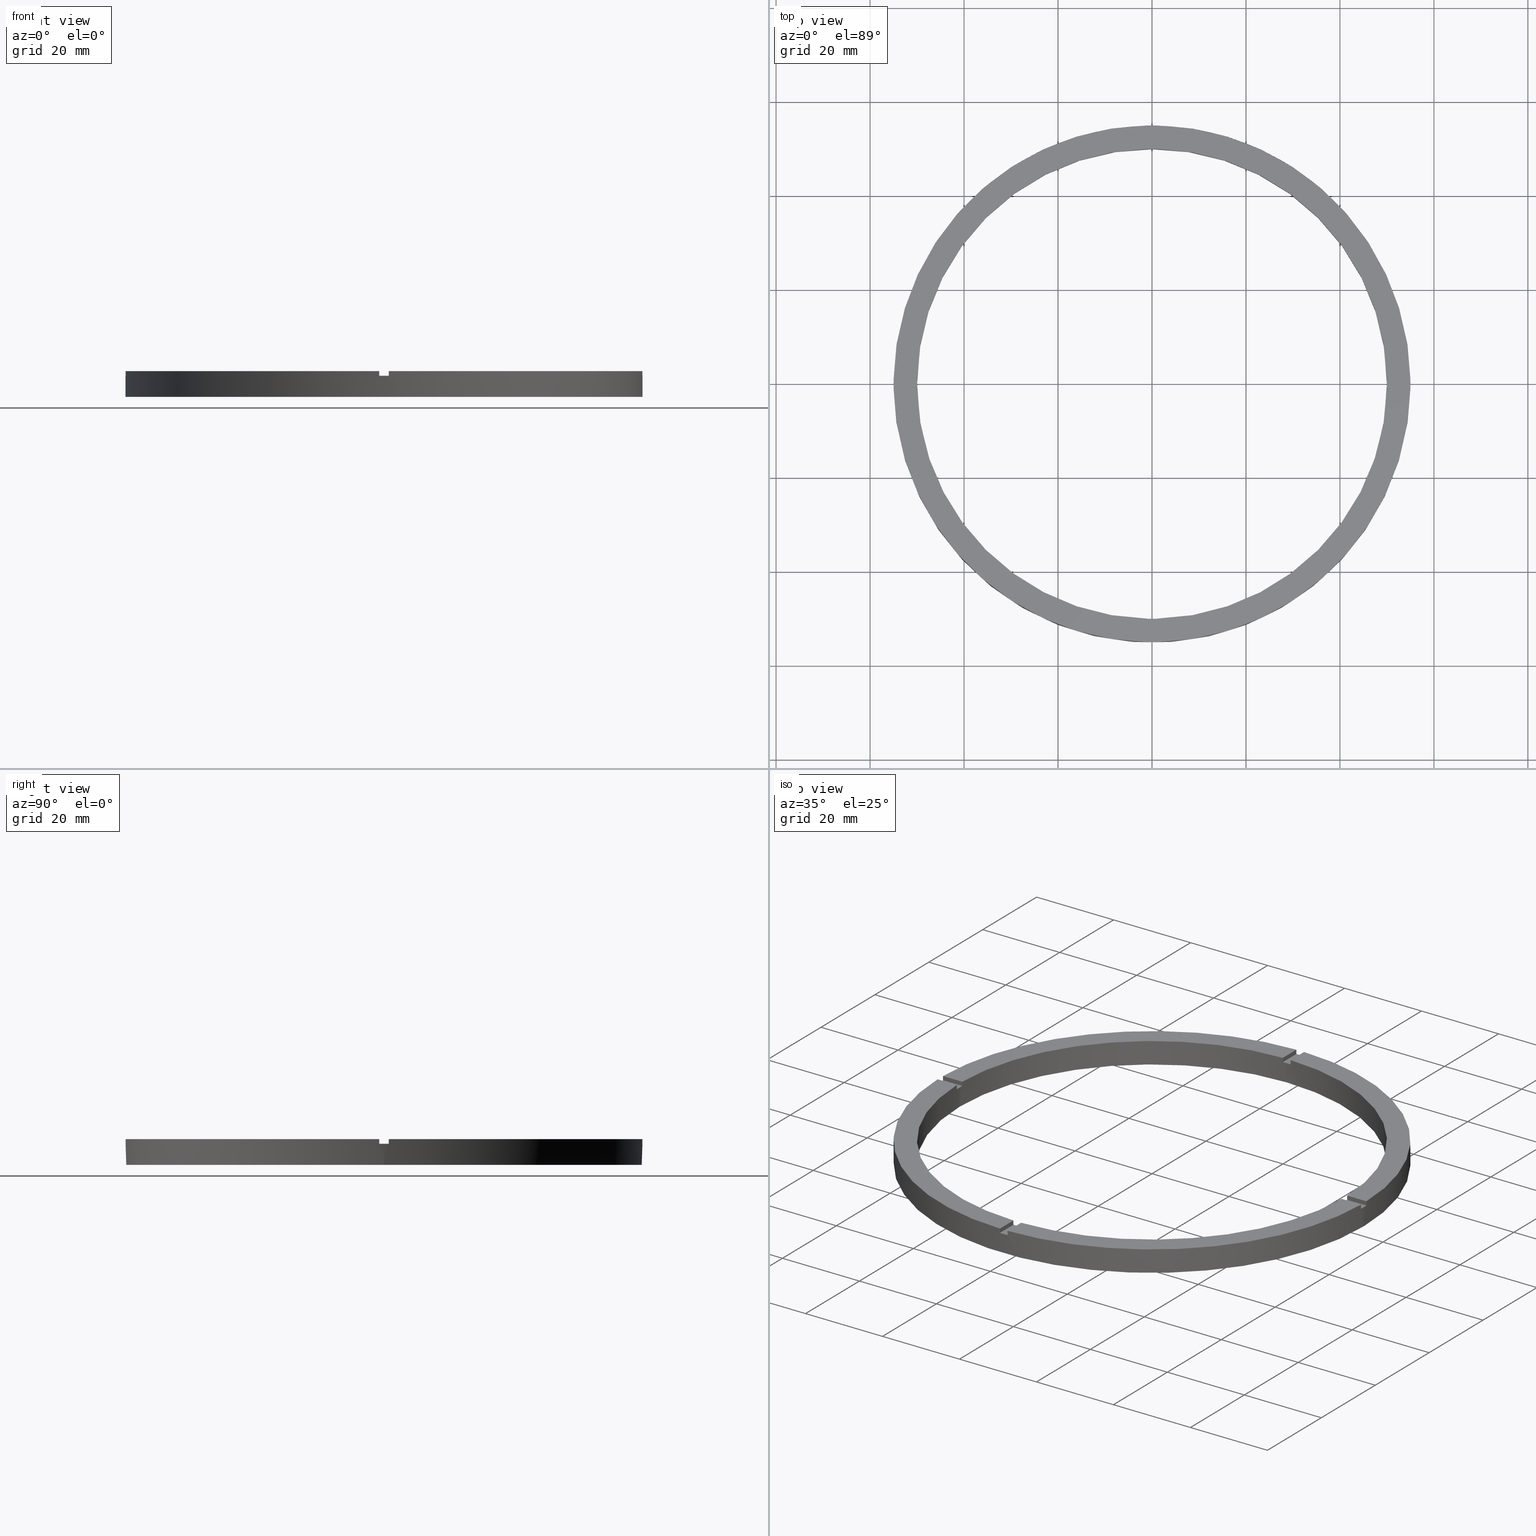
[diagram: canonical four-view strip — front | top / right | iso, engineering-drawing reading convention]
A machine part, canonical four-view strip (front | top / right | iso — engineering-drawing reading convention). The complete STEP part file that produces these views, byte-faithful:
ISO-10303-21;
HEADER;
FILE_DESCRIPTION (( 'STEP AP203' ),
    '1' );
FILE_NAME ('514224.step',
    '2024-12-26T02:49:48',
    ( 'MSI' ),
    ( '' ),
    'SwSTEP 2.0',
    'SolidWorks 2020',
    '' );
FILE_SCHEMA (( 'CONFIG_CONTROL_DESIGN' ));
ENDSEC;

DATA;
#1 = CARTESIAN_POINT ( 'NONE',  ( 0.9999999999999726885, 54.99090833947007440, 5.500000000000000000 ) ) ;
#2 = CC_DESIGN_PERSON_AND_ORGANIZATION_ASSIGNMENT ( #62, #739, ( #609 ) ) ;
#3 = VECTOR ( 'NONE', #651, 1000.000000000000000 ) ;
#4 = DIRECTION ( 'NONE',  ( 1.000000000000000000, 0.000000000000000000, 0.000000000000000000 ) ) ;
#5 = EDGE_CURVE ( 'NONE', #661, #153, #187, .T. ) ;
#6 = AXIS2_PLACEMENT_3D ( 'NONE', #12, #782, #416 ) ;
#7 = LINE ( 'NONE', #39, #521 ) ;
#8 = LINE ( 'NONE', #555, #3 ) ;
#9 = VECTOR ( 'NONE', #530, 1000.000000000000000 ) ;
#10 = DIRECTION ( 'NONE',  ( 1.000000000000000000, 0.000000000000000000, 0.000000000000000000 ) ) ;
#11 = LINE ( 'NONE', #549, #9 ) ;
#12 = CARTESIAN_POINT ( 'NONE',  ( 0.000000000000000000, 0.000000000000000000, 0.000000000000000000 ) ) ;
#13 = ADVANCED_FACE ( 'NONE', ( #699 ), #701, .F. ) ;
#14 = AXIS2_PLACEMENT_3D ( 'NONE', #533, #101, #403 ) ;
#15 = EDGE_CURVE ( 'NONE', #195, #423, #719, .T. ) ;
#16 = AXIS2_PLACEMENT_3D ( 'NONE', #142, #290, #580 ) ;
#17 = DIRECTION ( 'NONE',  ( 0.000000000000000000, 0.000000000000000000, 1.000000000000000000 ) ) ;
#18 = CARTESIAN_POINT ( 'NONE',  ( 55.00000000000000000, 6.735557395310442615E-15, 5.500000000000000000 ) ) ;
#19 = CARTESIAN_POINT ( 'NONE',  ( -1.000000000000156097, -49.98999899979995121, 5.500000000000000000 ) ) ;
#20 = CARTESIAN_POINT ( 'NONE',  ( -50.00000000000000000, 0.000000000000000000, 4.500000000000000000 ) ) ;
#21 = PLANE ( 'NONE',  #125 ) ;
#22 = EDGE_CURVE ( 'NONE', #711, #626, #473, .T. ) ;
#23 = SECURITY_CLASSIFICATION_LEVEL ( 'unclassified' ) ;
#24 = DIRECTION ( 'NONE',  ( 1.000000000000000000, 0.000000000000000000, 0.000000000000000000 ) ) ;
#25 = EDGE_CURVE ( 'NONE', #180, #45, #461, .T. ) ;
#26 = DIRECTION ( 'NONE',  ( 1.000000000000000000, 8.673617379884034239E-17, 0.000000000000000000 ) ) ;
#27 = DIRECTION ( 'NONE',  ( 0.000000000000000000, 0.000000000000000000, 1.000000000000000000 ) ) ;
#28 = ADVANCED_FACE ( 'NONE', ( #192 ), #729, .F. ) ;
#29 = CARTESIAN_POINT ( 'NONE',  ( 0.000000000000000000, 0.000000000000000000, 0.000000000000000000 ) ) ;
#30 = CARTESIAN_POINT ( 'NONE',  ( 0.000000000000000000, 0.000000000000000000, 0.000000000000000000 ) ) ;
#31 = MECHANICAL_CONTEXT ( 'NONE', #653, 'mechanical' ) ;
#32 = EDGE_CURVE ( 'NONE', #173, #150, #730, .T. ) ;
#33 = AXIS2_PLACEMENT_3D ( 'NONE', #30, #138, #425 ) ;
#34 = DIRECTION ( 'NONE',  ( 1.000000000000000000, 0.000000000000000000, 0.000000000000000000 ) ) ;
#35 = CARTESIAN_POINT ( 'NONE',  ( 54.99090833947007440, -1.000000000000154099, 5.500000000000000000 ) ) ;
#36 = DIRECTION ( 'NONE',  ( 0.000000000000000000, 0.000000000000000000, 1.000000000000000000 ) ) ;
#37 = CARTESIAN_POINT ( 'NONE',  ( 0.9999999999999726885, 45.00000000000000000, 5.500000000000000000 ) ) ;
#38 = LOCAL_TIME ( 10, 49, 48.00000000000000000, #561 ) ;
#39 = CARTESIAN_POINT ( 'NONE',  ( -1.000000000000027311, 45.00000000000000000, 4.500000000000000000 ) ) ;
#40 = ORIENTED_EDGE ( 'NONE', *, *, #389, .T. ) ;
#41 = PLANE ( 'NONE',  #615 ) ;
#42 = AXIS2_PLACEMENT_3D ( 'NONE', #396, #293, #4 ) ;
#43 = CARTESIAN_POINT ( 'NONE',  ( -49.98999899979995121, -1.000000000000031974, 5.500000000000000000 ) ) ;
#44 = CALENDAR_DATE ( 2024, 26, 12 ) ;
#45 = VERTEX_POINT ( 'NONE', #406 ) ;
#46 = DIRECTION ( 'NONE',  ( 1.000000000000000000, 0.000000000000000000, 0.000000000000000000 ) ) ;
#47 = ADVANCED_FACE ( 'NONE', ( #455 ), #172, .F. ) ;
#48 = EDGE_CURVE ( 'NONE', #632, #404, #199, .T. ) ;
#49 = AXIS2_PLACEMENT_3D ( 'NONE', #751, #115, #520 ) ;
#50 = ORGANIZATION ( 'δָ��', 'δָ��', '' ) ;
#51 = VERTEX_POINT ( 'NONE', #1 ) ;
#52 = DIRECTION ( 'NONE',  ( 0.000000000000000000, 0.000000000000000000, 1.000000000000000000 ) ) ;
#53 = AXIS2_PLACEMENT_3D ( 'NONE', #130, #543, #266 ) ;
#54 = APPROVAL_PERSON_ORGANIZATION ( #551, #635, #262 ) ;
#55 = DATE_AND_TIME ( #556, #323 ) ;
#56 = PLANE ( 'NONE',  #16 ) ;
#57 = ORIENTED_EDGE ( 'NONE', *, *, #177, .F. ) ;
#58 = CARTESIAN_POINT ( 'NONE',  ( -1.000000000000155431, -54.99090833947007440, 5.500000000000000000 ) ) ;
#59 = CARTESIAN_POINT ( 'NONE',  ( -1.000000000000155431, -54.99090833947007440, 5.500000000000000000 ) ) ;
#60 = CALENDAR_DATE ( 2024, 26, 12 ) ;
#61 = ORIENTED_EDGE ( 'NONE', *, *, #600, .T. ) ;
#62 = PERSON_AND_ORGANIZATION ( #686, #50 ) ;
#63 = DATE_AND_TIME ( #309, #320 ) ;
#64 = CC_DESIGN_DATE_AND_TIME_ASSIGNMENT ( #308, #82, ( #683 ) ) ;
#65 = DIRECTION ( 'NONE',  ( 0.000000000000000000, 0.000000000000000000, 1.000000000000000000 ) ) ;
#66 = PERSON_AND_ORGANIZATION ( #686, #50 ) ;
#67 = ORIENTED_EDGE ( 'NONE', *, *, #443, .T. ) ;
#68 = EDGE_CURVE ( 'NONE', #213, #51, #706, .T. ) ;
#69 = VERTEX_POINT ( 'NONE', #373 ) ;
#70 = DATE_AND_TIME ( #60, #572 ) ;
#71 = DIRECTION ( 'NONE',  ( -0.000000000000000000, -0.000000000000000000, -1.000000000000000000 ) ) ;
#72 = EDGE_CURVE ( 'NONE', #409, #51, #204, .T. ) ;
#73 = DIRECTION ( 'NONE',  ( -0.000000000000000000, -0.000000000000000000, -1.000000000000000000 ) ) ;
#74 = DIRECTION ( 'NONE',  ( 0.000000000000000000, 0.000000000000000000, 1.000000000000000000 ) ) ;
#75 = DIRECTION ( 'NONE',  ( -0.000000000000000000, -0.000000000000000000, -1.000000000000000000 ) ) ;
#76 = ADVANCED_FACE ( 'NONE', ( #194 ), #56, .T. ) ;
#77 = DIRECTION ( 'NONE',  ( 0.000000000000000000, 0.000000000000000000, -1.000000000000000000 ) ) ;
#78 = DIRECTION ( 'NONE',  ( 0.000000000000000000, 0.000000000000000000, 1.000000000000000000 ) ) ;
#79 = DATE_TIME_ROLE ( 'classification_date' ) ;
#80 = CARTESIAN_POINT ( 'NONE',  ( 49.98999899979995831, 0.9999999999998454570, 5.500000000000000000 ) ) ;
#81 = ADVANCED_FACE ( 'NONE', ( #708 ), #151, .T. ) ;
#82 = DATE_TIME_ROLE ( 'creation_date' ) ;
#83 = AXIS2_PLACEMENT_3D ( 'NONE', #143, #228, #529 ) ;
#84 = CC_DESIGN_APPROVAL ( #591, ( #283 ) ) ;
#85 = DIRECTION ( 'NONE',  ( -1.000000000000000000, 0.000000000000000000, 0.000000000000000000 ) ) ;
#86 = DIRECTION ( 'NONE',  ( 1.000000000000000000, 0.000000000000000000, -0.000000000000000000 ) ) ;
#87 = EDGE_CURVE ( 'NONE', #451, #562, #460, .T. ) ;
#88 = CARTESIAN_POINT ( 'NONE',  ( -54.99090833947007440, 0.9999999999999672484, 5.500000000000000000 ) ) ;
#89 = AXIS2_PLACEMENT_3D ( 'NONE', #620, #691, #570 ) ;
#90 = EDGE_LOOP ( 'NONE', ( #380, #645, #454, #149 ) ) ;
#91 = PRODUCT_RELATED_PRODUCT_CATEGORY ( 'detail', '', ( #609 ) ) ;
#92 = EDGE_CURVE ( 'NONE', #173, #735, #712, .T. ) ;
#93 = DIRECTION ( 'NONE',  ( -0.000000000000000000, -0.000000000000000000, -1.000000000000000000 ) ) ;
#94 = CARTESIAN_POINT ( 'NONE',  ( -49.98999899979995121, 0.9999999999999681366, 5.500000000000000000 ) ) ;
#95 = CARTESIAN_POINT ( 'NONE',  ( 0.9999999999998432365, -45.00000000000017764, 5.500000000000000000 ) ) ;
#96 = EDGE_LOOP ( 'NONE', ( #222, #438, #742, #137 ) ) ;
#97 = DIRECTION ( 'NONE',  ( 1.000000000000000000, 0.000000000000000000, 0.000000000000000000 ) ) ;
#98 = AXIS2_PLACEMENT_3D ( 'NONE', #624, #357, #52 ) ;
#99 = DIRECTION ( 'NONE',  ( 1.000000000000000000, 0.000000000000000000, -0.000000000000000000 ) ) ;
#100 = CARTESIAN_POINT ( 'NONE',  ( 54.99090833947007440, -1.000000000000154099, 5.500000000000000000 ) ) ;
#101 = DIRECTION ( 'NONE',  ( 0.000000000000000000, 0.000000000000000000, 1.000000000000000000 ) ) ;
#102 = ADVANCED_FACE ( 'NONE', ( #203 ), #765, .F. ) ;
#103 = AXIS2_PLACEMENT_3D ( 'NONE', #575, #616, #586 ) ;
#104 = EDGE_CURVE ( 'NONE', #45, #408, #219, .T. ) ;
#105 = CARTESIAN_POINT ( 'NONE',  ( -1.000000000000156763, -45.00000000000017764, 4.500000000000000000 ) ) ;
#106 = ORIENTED_EDGE ( 'NONE', *, *, #432, .T. ) ;
#107 = CARTESIAN_POINT ( 'NONE',  ( -1.000000000000027311, 54.99090833947007440, 5.500000000000000000 ) ) ;
#108 = ORIENTED_EDGE ( 'NONE', *, *, #148, .T. ) ;
#109 = EDGE_LOOP ( 'NONE', ( #295, #201, #184, #725 ) ) ;
#110 = AXIS2_PLACEMENT_3D ( 'NONE', #305, #27, #206 ) ;
#111 = EDGE_CURVE ( 'NONE', #442, #408, #716, .T. ) ;
#112 = EDGE_LOOP ( 'NONE', ( #639, #141, #410, #644, #168, #302, #565, #398, #627, #126, #421, #171 ) ) ;
#113 = AXIS2_PLACEMENT_3D ( 'NONE', #239, #539, #99 ) ;
#114 = ORIENTED_EDGE ( 'NONE', *, *, #600, .F. ) ;
#115 = DIRECTION ( 'NONE',  ( 0.000000000000000000, -0.000000000000000000, 1.000000000000000000 ) ) ;
#116 = VERTEX_POINT ( 'NONE', #158 ) ;
#117 = ORIENTED_EDGE ( 'NONE', *, *, #582, .T. ) ;
#118 = ADVANCED_FACE ( 'NONE', ( #720 ), #468, .T. ) ;
#119 = CARTESIAN_POINT ( 'NONE',  ( -1.000000000000155431, -54.99090833947007440, 4.500000000000000000 ) ) ;
#120 = ORIENTED_EDGE ( 'NONE', *, *, #177, .T. ) ;
#121 = ORIENTED_EDGE ( 'NONE', *, *, #87, .T. ) ;
#122 = ORIENTED_EDGE ( 'NONE', *, *, #389, .F. ) ;
#123 = VERTEX_POINT ( 'NONE', #780 ) ;
#124 = CARTESIAN_POINT ( 'NONE',  ( 0.000000000000000000, 0.000000000000000000, 5.500000000000000000 ) ) ;
#125 = AXIS2_PLACEMENT_3D ( 'NONE', #522, #78, #86 ) ;
#126 = ORIENTED_EDGE ( 'NONE', *, *, #630, .F. ) ;
#127 = ADVANCED_FACE ( 'NONE', ( #211 ), #385, .F. ) ;
#128 = ORIENTED_EDGE ( 'NONE', *, *, #212, .T. ) ;
#129 = CARTESIAN_POINT ( 'NONE',  ( -1.000000000000156763, -45.00000000000017764, 5.500000000000000000 ) ) ;
#130 = CARTESIAN_POINT ( 'NONE',  ( 0.000000000000000000, 0.000000000000000000, 4.500000000000000000 ) ) ;
#131 = CARTESIAN_POINT ( 'NONE',  ( 0.000000000000000000, 0.000000000000000000, 5.500000000000000000 ) ) ;
#132 = ORIENTED_EDGE ( 'NONE', *, *, #546, .F. ) ;
#133 = AXIS2_PLACEMENT_3D ( 'NONE', #506, #281, #333 ) ;
#134 = EDGE_LOOP ( 'NONE', ( #466, #413, #663, #688 ) ) ;
#135 = ORIENTED_EDGE ( 'NONE', *, *, #48, .T. ) ;
#136 = CARTESIAN_POINT ( 'NONE',  ( 49.98999899979995121, -1.000000000000154543, 4.500000000000000000 ) ) ;
#137 = ORIENTED_EDGE ( 'NONE', *, *, #32, .T. ) ;
#138 = DIRECTION ( 'NONE',  ( 0.000000000000000000, 0.000000000000000000, 1.000000000000000000 ) ) ;
#139 = ORIENTED_EDGE ( 'NONE', *, *, #482, .F. ) ;
#140 = ORIENTED_EDGE ( 'NONE', *, *, #482, .T. ) ;
#141 = ORIENTED_EDGE ( 'NONE', *, *, #528, .F. ) ;
#142 = CARTESIAN_POINT ( 'NONE',  ( 0.000000000000000000, 0.000000000000000000, 4.500000000000000000 ) ) ;
#143 = CARTESIAN_POINT ( 'NONE',  ( -45.00000000000018474, 0.9999999999999690248, 4.500000000000000000 ) ) ;
#144 = ORIENTED_EDGE ( 'NONE', *, *, #272, .F. ) ;
#145 = EDGE_CURVE ( 'NONE', #634, #409, #445, .T. ) ;
#146 = CARTESIAN_POINT ( 'NONE',  ( 0.9999999999999726885, 45.00000000000000000, 4.500000000000000000 ) ) ;
#147 = ORIENTED_EDGE ( 'NONE', *, *, #771, .F. ) ;
#148 = EDGE_CURVE ( 'NONE', #442, #161, #727, .T. ) ;
#149 = ORIENTED_EDGE ( 'NONE', *, *, #486, .F. ) ;
#150 = VERTEX_POINT ( 'NONE', #35 ) ;
#151 = PLANE ( 'NONE',  #103 ) ;
#152 = VERTEX_POINT ( 'NONE', #279 ) ;
#153 = VERTEX_POINT ( 'NONE', #366 ) ;
#154 = ORIENTED_EDGE ( 'NONE', *, *, #178, .F. ) ;
#155 = DIRECTION ( 'NONE',  ( -0.000000000000000000, -0.000000000000000000, -1.000000000000000000 ) ) ;
#156 = ORIENTED_EDGE ( 'NONE', *, *, #732, .T. ) ;
#157 = ADVANCED_FACE ( 'NONE', ( #476 ), #650, .T. ) ;
#158 = CARTESIAN_POINT ( 'NONE',  ( 0.9999999999999726885, 54.99090833947007440, 4.500000000000000000 ) ) ;
#159 = EDGE_LOOP ( 'NONE', ( #383, #649, #715, #646 ) ) ;
#160 = CARTESIAN_POINT ( 'NONE',  ( 0.9999999999998439026, -49.98999899979995831, 4.500000000000000000 ) ) ;
#161 = VERTEX_POINT ( 'NONE', #743 ) ;
#162 = DIRECTION ( 'NONE',  ( 1.000000000000000000, 0.000000000000000000, 0.000000000000000000 ) ) ;
#163 = ORIENTED_EDGE ( 'NONE', *, *, #328, .T. ) ;
#164 = EDGE_LOOP ( 'NONE', ( #326, #447, #581, #696 ) ) ;
#165 = EDGE_CURVE ( 'NONE', #451, #477, #480, .T. ) ;
#166 = AXIS2_PLACEMENT_3D ( 'NONE', #259, #174, #46 ) ;
#167 = CARTESIAN_POINT ( 'NONE',  ( 0.000000000000000000, 0.000000000000000000, 5.500000000000000000 ) ) ;
#168 = ORIENTED_EDGE ( 'NONE', *, *, #496, .T. ) ;
#169 = ORIENTED_EDGE ( 'NONE', *, *, #606, .F. ) ;
#170 = CARTESIAN_POINT ( 'NONE',  ( 0.000000000000000000, 0.000000000000000000, 4.500000000000000000 ) ) ;
#171 = ORIENTED_EDGE ( 'NONE', *, *, #546, .T. ) ;
#172 = PLANE ( 'NONE',  #433 ) ;
#173 = VERTEX_POINT ( 'NONE', #378 ) ;
#174 = DIRECTION ( 'NONE',  ( 0.000000000000000000, 0.000000000000000000, 1.000000000000000000 ) ) ;
#175 = VERTEX_POINT ( 'NONE', #265 ) ;
#176 = DIRECTION ( 'NONE',  ( 1.000000000000000000, 0.000000000000000000, 0.000000000000000000 ) ) ;
#177 = EDGE_CURVE ( 'NONE', #180, #669, #481, .T. ) ;
#178 = EDGE_CURVE ( 'NONE', #634, #214, #439, .T. ) ;
#179 = VERTEX_POINT ( 'NONE', #607 ) ;
#180 = VERTEX_POINT ( 'NONE', #500 ) ;
#181 = PERSON_AND_ORGANIZATION_ROLE ( 'design_supplier' ) ;
#182 = VECTOR ( 'NONE', #312, 1000.000000000000000 ) ;
#183 = DIRECTION ( 'NONE',  ( -0.000000000000000000, -0.000000000000000000, -1.000000000000000000 ) ) ;
#184 = ORIENTED_EDGE ( 'NONE', *, *, #190, .T. ) ;
#185 = VECTOR ( 'NONE', #525, 1000.000000000000000 ) ;
#186 = ORIENTED_EDGE ( 'NONE', *, *, #25, .T. ) ;
#187 = LINE ( 'NONE', #599, #695 ) ;
#188 = ORIENTED_EDGE ( 'NONE', *, *, #582, .F. ) ;
#189 = CIRCLE ( 'NONE', #470, 55.00000000000000000 ) ;
#190 = EDGE_CURVE ( 'NONE', #477, #458, #440, .T. ) ;
#191 = CARTESIAN_POINT ( 'NONE',  ( 0.000000000000000000, 0.000000000000000000, 4.500000000000000000 ) ) ;
#192 = FACE_OUTER_BOUND ( 'NONE', #640, .T. ) ;
#193 = CARTESIAN_POINT ( 'NONE',  ( -55.00000000000000000, 0.000000000000000000, 4.500000000000000000 ) ) ;
#194 = FACE_OUTER_BOUND ( 'NONE', #348, .T. ) ;
#195 = VERTEX_POINT ( 'NONE', #136 ) ;
#196 = CARTESIAN_POINT ( 'NONE',  ( -1.000000000000027311, 49.98999899979995121, 5.500000000000000000 ) ) ;
#197 = APPLICATION_PROTOCOL_DEFINITION ( 'international standard', 'config_control_design', 1994, #653 ) ;
#198 = EDGE_CURVE ( 'NONE', #626, #153, #189, .T. ) ;
#199 = LINE ( 'NONE', #43, #472 ) ;
#200 = VECTOR ( 'NONE', #264, 1000.000000000000000 ) ;
#201 = ORIENTED_EDGE ( 'NONE', *, *, #165, .T. ) ;
#202 = DIRECTION ( 'NONE',  ( 1.301042606982605074E-16, -1.000000000000000000, 0.000000000000000000 ) ) ;
#203 = FACE_OUTER_BOUND ( 'NONE', #659, .T. ) ;
#204 = LINE ( 'NONE', #37, #185 ) ;
#205 = CARTESIAN_POINT ( 'NONE',  ( 0.000000000000000000, 0.000000000000000000, 4.500000000000000000 ) ) ;
#206 = DIRECTION ( 'NONE',  ( 1.000000000000000000, 0.000000000000000000, 0.000000000000000000 ) ) ;
#207 = ORIENTED_EDGE ( 'NONE', *, *, #592, .F. ) ;
#208 = VECTOR ( 'NONE', #456, 1000.000000000000000 ) ;
#209 = ORIENTED_EDGE ( 'NONE', *, *, #246, .T. ) ;
#210 = DIRECTION ( 'NONE',  ( -1.000000000000000000, -8.673617379884034239E-17, 0.000000000000000000 ) ) ;
#211 = FACE_OUTER_BOUND ( 'NONE', #675, .T. ) ;
#212 = EDGE_CURVE ( 'NONE', #735, #69, #453, .T. ) ;
#213 = VERTEX_POINT ( 'NONE', #446 ) ;
#214 = VERTEX_POINT ( 'NONE', #358 ) ;
#215 = VECTOR ( 'NONE', #338, 1000.000000000000000 ) ;
#216 = ORIENTED_EDGE ( 'NONE', *, *, #486, .T. ) ;
#217 = VECTOR ( 'NONE', #571, 1000.000000000000000 ) ;
#218 = CARTESIAN_POINT ( 'NONE',  ( 0.9999999999999726885, 49.98999899979995121, 5.500000000000000000 ) ) ;
#219 = LINE ( 'NONE', #759, #463 ) ;
#220 = ORIENTED_EDGE ( 'NONE', *, *, #732, .F. ) ;
#221 = DIRECTION ( 'NONE',  ( -1.000000000000000000, 0.000000000000000000, 0.000000000000000000 ) ) ;
#222 = ORIENTED_EDGE ( 'NONE', *, *, #363, .F. ) ;
#223 = VECTOR ( 'NONE', #334, 1000.000000000000000 ) ;
#224 = AXIS2_PLACEMENT_3D ( 'NONE', #327, #435, #563 ) ;
#225 = CARTESIAN_POINT ( 'NONE',  ( 44.99999999999999289, -1.000000000000154987, 4.500000000000000000 ) ) ;
#226 = FACE_OUTER_BOUND ( 'NONE', #109, .T. ) ;
#227 = VECTOR ( 'NONE', #287, 1000.000000000000000 ) ;
#228 = DIRECTION ( 'NONE',  ( -1.951563910473907735E-16, 1.000000000000000000, 0.000000000000000000 ) ) ;
#229 = LINE ( 'NONE', #105, #234 ) ;
#230 = EDGE_CURVE ( 'NONE', #179, #414, #704, .T. ) ;
#231 = LINE ( 'NONE', #437, #250 ) ;
#232 = CARTESIAN_POINT ( 'NONE',  ( 0.000000000000000000, 0.000000000000000000, 5.500000000000000000 ) ) ;
#233 = EDGE_CURVE ( 'NONE', #195, #664, #240, .T. ) ;
#234 = VECTOR ( 'NONE', #618, 1000.000000000000000 ) ;
#235 = LINE ( 'NONE', #692, #772 ) ;
#236 = ORIENTED_EDGE ( 'NONE', *, *, #469, .T. ) ;
#237 = ADVANCED_FACE ( 'NONE', ( #226 ), #374, .F. ) ;
#238 = LINE ( 'NONE', #100, #515 ) ;
#239 = CARTESIAN_POINT ( 'NONE',  ( 0.000000000000000000, 0.000000000000000000, 4.500000000000000000 ) ) ;
#240 = CIRCLE ( 'NONE', #693, 50.00000000000000000 ) ;
#241 = FACE_OUTER_BOUND ( 'NONE', #96, .T. ) ;
#242 = LINE ( 'NONE', #622, #227 ) ;
#243 = DIRECTION ( 'NONE',  ( -1.301042606982605074E-16, 1.000000000000000000, 0.000000000000000000 ) ) ;
#244 = CIRCLE ( 'NONE', #497, 50.00000000000000000 ) ;
#245 = PLANE ( 'NONE',  #98 ) ;
#246 = EDGE_CURVE ( 'NONE', #345, #467, #507, .T. ) ;
#247 = CIRCLE ( 'NONE', #33, 50.00000000000000000 ) ;
#248 = CARTESIAN_POINT ( 'NONE',  ( -1.000000000000156097, -49.98999899979995121, 5.500000000000000000 ) ) ;
#249 = CIRCLE ( 'NONE', #619, 50.00000000000000000 ) ;
#250 = VECTOR ( 'NONE', #332, 1000.000000000000000 ) ;
#251 = DIRECTION ( 'NONE',  ( 1.000000000000000000, 1.301042606982605074E-16, 0.000000000000000000 ) ) ;
#252 = VECTOR ( 'NONE', #339, 1000.000000000000000 ) ;
#253 = CIRCLE ( 'NONE', #656, 50.00000000000000000 ) ;
#254 = ADVANCED_FACE ( 'NONE', ( #748 ), #41, .F. ) ;
#255 = VECTOR ( 'NONE', #270, 1000.000000000000000 ) ;
#256 = CIRCLE ( 'NONE', #260, 55.00000000000000000 ) ;
#257 = CIRCLE ( 'NONE', #593, 55.00000000000000000 ) ;
#258 = LINE ( 'NONE', #355, #502 ) ;
#259 = CARTESIAN_POINT ( 'NONE',  ( 0.000000000000000000, 0.000000000000000000, 4.500000000000000000 ) ) ;
#260 = AXIS2_PLACEMENT_3D ( 'NONE', #642, #17, #498 ) ;
#261 = FACE_OUTER_BOUND ( 'NONE', #558, .T. ) ;
#262 = APPROVAL_ROLE ( '' ) ;
#263 = CARTESIAN_POINT ( 'NONE',  ( 0.9999999999998439026, -49.98999899979995831, 5.500000000000000000 ) ) ;
#264 = DIRECTION ( 'NONE',  ( 1.000000000000000000, 8.673617379884034239E-17, 0.000000000000000000 ) ) ;
#265 = CARTESIAN_POINT ( 'NONE',  ( -54.99090833947007440, -1.000000000000032863, 5.500000000000000000 ) ) ;
#266 = DIRECTION ( 'NONE',  ( 1.000000000000000000, 0.000000000000000000, 0.000000000000000000 ) ) ;
#267 = FACE_OUTER_BOUND ( 'NONE', #112, .T. ) ;
#268 =( NAMED_UNIT ( * ) SI_UNIT ( $, .STERADIAN. ) SOLID_ANGLE_UNIT ( ) );
#269 = DIRECTION ( 'NONE',  ( 1.000000000000000000, 0.000000000000000000, 0.000000000000000000 ) ) ;
#270 = DIRECTION ( 'NONE',  ( 0.000000000000000000, 0.000000000000000000, 1.000000000000000000 ) ) ;
#271 = APPLICATION_PROTOCOL_DEFINITION ( 'international standard', 'config_control_design', 1994, #512 ) ;
#272 = EDGE_CURVE ( 'NONE', #180, #724, #749, .T. ) ;
#273 = CARTESIAN_POINT ( 'NONE',  ( -1.000000000000156763, -45.00000000000017764, 4.500000000000000000 ) ) ;
#274 = AXIS2_PLACEMENT_3D ( 'NONE', #531, #471, #34 ) ;
#275 = CARTESIAN_POINT ( 'NONE',  ( 0.000000000000000000, 0.000000000000000000, 5.500000000000000000 ) ) ;
#276 = DIRECTION ( 'NONE',  ( 0.000000000000000000, 0.000000000000000000, 1.000000000000000000 ) ) ;
#277 = APPROVAL_STATUS ( 'not_yet_approved' ) ;
#278 = DIRECTION ( 'NONE',  ( -0.000000000000000000, -0.000000000000000000, -1.000000000000000000 ) ) ;
#279 = CARTESIAN_POINT ( 'NONE',  ( 50.00000000000000000, 6.123233995736766085E-15, 0.000000000000000000 ) ) ;
#280 = DIRECTION ( 'NONE',  ( -8.673617379884034239E-17, 1.000000000000000000, 0.000000000000000000 ) ) ;
#281 = DIRECTION ( 'NONE',  ( 0.000000000000000000, 0.000000000000000000, 1.000000000000000000 ) ) ;
#282 = CARTESIAN_POINT ( 'NONE',  ( 50.00000000000000000, 6.123233995736766085E-15, 4.500000000000000000 ) ) ;
#283 = PRODUCT_DEFINITION_FORMATION_WITH_SPECIFIED_SOURCE ( '�κ�', '', #609, .NOT_KNOWN. ) ;
#284 = CARTESIAN_POINT ( 'NONE',  ( 49.98999899979995831, 0.9999999999998454570, 4.500000000000000000 ) ) ;
#285 = EDGE_CURVE ( 'NONE', #754, #404, #509, .T. ) ;
#286 = CARTESIAN_POINT ( 'NONE',  ( 0.9999999999999726885, 49.98999899979995121, 5.500000000000000000 ) ) ;
#287 = DIRECTION ( 'NONE',  ( -1.301042606982605074E-16, 1.000000000000000000, -0.000000000000000000 ) ) ;
#288 = AXIS2_PLACEMENT_3D ( 'NONE', #379, #75, #85 ) ;
#289 = CARTESIAN_POINT ( 'NONE',  ( 54.99090833947007440, -1.000000000000154099, 4.500000000000000000 ) ) ;
#290 = DIRECTION ( 'NONE',  ( -0.000000000000000000, 0.000000000000000000, 1.000000000000000000 ) ) ;
#291 = PLANE ( 'NONE',  #6 ) ;
#292 = COORDINATED_UNIVERSAL_TIME_OFFSET ( 8, 0, .AHEAD. ) ;
#293 = DIRECTION ( 'NONE',  ( 0.000000000000000000, 0.000000000000000000, 1.000000000000000000 ) ) ;
#294 = APPROVAL_DATE_TIME ( #63, #635 ) ;
#295 = ORIENTED_EDGE ( 'NONE', *, *, #517, .F. ) ;
#296 = CARTESIAN_POINT ( 'NONE',  ( 0.9999999999998432365, -45.00000000000017764, 4.500000000000000000 ) ) ;
#297 = APPROVAL_PERSON_ORGANIZATION ( #66, #775, #362 ) ;
#298 = AXIS2_PLACEMENT_3D ( 'NONE', #545, #643, #602 ) ;
#299 = DIRECTION ( 'NONE',  ( 0.000000000000000000, 0.000000000000000000, 1.000000000000000000 ) ) ;
#300 = CC_DESIGN_PERSON_AND_ORGANIZATION_ASSIGNMENT ( #307, #356, ( #542 ) ) ;
#301 = PERSON_AND_ORGANIZATION ( #686, #50 ) ;
#302 = ORIENTED_EDGE ( 'NONE', *, *, #246, .F. ) ;
#303 = EDGE_CURVE ( 'NONE', #175, #754, #745, .T. ) ;
#304 = ORIENTED_EDGE ( 'NONE', *, *, #314, .F. ) ;
#305 = CARTESIAN_POINT ( 'NONE',  ( 0.000000000000000000, 0.000000000000000000, 0.000000000000000000 ) ) ;
#306 = CARTESIAN_POINT ( 'NONE',  ( -1.000000000000156097, -49.98999899979995121, 4.500000000000000000 ) ) ;
#307 = PERSON_AND_ORGANIZATION ( #686, #50 ) ;
#308 = DATE_AND_TIME ( #569, #313 ) ;
#309 = CALENDAR_DATE ( 2024, 26, 12 ) ;
#310 = COORDINATED_UNIVERSAL_TIME_OFFSET ( 8, 0, .AHEAD. ) ;
#311 = DIRECTION ( 'NONE',  ( 0.000000000000000000, 0.000000000000000000, 1.000000000000000000 ) ) ;
#312 = DIRECTION ( 'NONE',  ( -0.000000000000000000, -0.000000000000000000, -1.000000000000000000 ) ) ;
#313 = LOCAL_TIME ( 10, 49, 48.00000000000000000, #310 ) ;
#314 = EDGE_CURVE ( 'NONE', #664, #414, #513, .T. ) ;
#315 = AXIS2_PLACEMENT_3D ( 'NONE', #232, #705, #340 ) ;
#316 = COORDINATED_UNIVERSAL_TIME_OFFSET ( 8, 0, .AHEAD. ) ;
#317 = DIRECTION ( 'NONE',  ( -0.000000000000000000, -1.000000000000000000, -0.000000000000000000 ) ) ;
#318 = APPROVAL_STATUS ( 'not_yet_approved' ) ;
#319 = APPROVAL_PERSON_ORGANIZATION ( #301, #591, #503 ) ;
#320 = LOCAL_TIME ( 10, 49, 48.00000000000000000, #316 ) ;
#321 = PERSON_AND_ORGANIZATION ( #686, #50 ) ;
#322 = DATE_AND_TIME ( #44, #38 ) ;
#323 = LOCAL_TIME ( 10, 49, 48.00000000000000000, #292 ) ;
#324 = ORIENTED_EDGE ( 'NONE', *, *, #665, .T. ) ;
#325 = APPROVAL_DATE_TIME ( #70, #591 ) ;
#326 = ORIENTED_EDGE ( 'NONE', *, *, #92, .T. ) ;
#327 = CARTESIAN_POINT ( 'NONE',  ( 0.000000000000000000, 0.000000000000000000, 4.500000000000000000 ) ) ;
#328 = EDGE_CURVE ( 'NONE', #175, #458, #774, .T. ) ;
#329 = AXIS2_PLACEMENT_3D ( 'NONE', #594, #351, #703 ) ;
#330 = CARTESIAN_POINT ( 'NONE',  ( 0.9999999999999726885, 45.00000000000000000, 4.500000000000000000 ) ) ;
#331 = PRODUCT_DEFINITION_SHAPE ( 'NONE', 'NONE',  #683 ) ;
#332 = DIRECTION ( 'NONE',  ( -1.000000000000000000, -1.951563910473907735E-16, 0.000000000000000000 ) ) ;
#333 = DIRECTION ( 'NONE',  ( 1.000000000000000000, 0.000000000000000000, 0.000000000000000000 ) ) ;
#334 = DIRECTION ( 'NONE',  ( 1.000000000000000000, 1.951563910473907735E-16, -0.000000000000000000 ) ) ;
#335 = EDGE_CURVE ( 'NONE', #724, #408, #231, .T. ) ;
#336 = CC_DESIGN_PERSON_AND_ORGANIZATION_ASSIGNMENT ( #576, #426, ( #283 ) ) ;
#337 = EDGE_CURVE ( 'NONE', #634, #116, #505, .T. ) ;
#338 = DIRECTION ( 'NONE',  ( 0.000000000000000000, 0.000000000000000000, 1.000000000000000000 ) ) ;
#339 = DIRECTION ( 'NONE',  ( 0.000000000000000000, 0.000000000000000000, 1.000000000000000000 ) ) ;
#340 = DIRECTION ( 'NONE',  ( 1.000000000000000000, 0.000000000000000000, -0.000000000000000000 ) ) ;
#341 = CARTESIAN_POINT ( 'NONE',  ( 0.000000000000000000, 0.000000000000000000, 5.500000000000000000 ) ) ;
#342 = EDGE_CURVE ( 'NONE', #442, #387, #485, .T. ) ;
#343 = CARTESIAN_POINT ( 'NONE',  ( 0.000000000000000000, 0.000000000000000000, 0.000000000000000000 ) ) ;
#344 = AXIS2_PLACEMENT_3D ( 'NONE', #452, #276, #511 ) ;
#345 = VERTEX_POINT ( 'NONE', #119 ) ;
#346 = EDGE_LOOP ( 'NONE', ( #448, #636, #377, #700, #57, #186 ) ) ;
#347 = ADVANCED_FACE ( 'NONE', ( #504 ), #660, .T. ) ;
#348 = EDGE_LOOP ( 'NONE', ( #209, #67, #557, #491 ) ) ;
#349 = CARTESIAN_POINT ( 'NONE',  ( -49.98999899979995121, -1.000000000000031974, 5.500000000000000000 ) ) ;
#350 = ORIENTED_EDGE ( 'NONE', *, *, #353, .F. ) ;
#351 = DIRECTION ( 'NONE',  ( 1.951563910473907735E-16, -1.000000000000000000, 0.000000000000000000 ) ) ;
#352 = AXIS2_PLACEMENT_3D ( 'NONE', #783, #299, #162 ) ;
#353 = EDGE_CURVE ( 'NONE', #116, #51, #770, .T. ) ;
#354 = AXIS2_PLACEMENT_3D ( 'NONE', #191, #547, #670 ) ;
#355 = CARTESIAN_POINT ( 'NONE',  ( -50.00000000000000000, 0.000000000000000000, 5.500000000000000000 ) ) ;
#356 = PERSON_AND_ORGANIZATION_ROLE ( 'classification_officer' ) ;
#357 = DIRECTION ( 'NONE',  ( -1.000000000000000000, 0.000000000000000000, 0.000000000000000000 ) ) ;
#358 = CARTESIAN_POINT ( 'NONE',  ( -1.000000000000027311, 49.98999899979995121, 4.500000000000000000 ) ) ;
#359 = DIRECTION ( 'NONE',  ( 1.000000000000000000, -0.000000000000000000, 0.000000000000000000 ) ) ;
#360 = DIRECTION ( 'NONE',  ( 0.000000000000000000, 0.000000000000000000, 1.000000000000000000 ) ) ;
#361 = EDGE_CURVE ( 'NONE', #152, #123, #247, .T. ) ;
#362 = APPROVAL_ROLE ( '' ) ;
#363 = EDGE_CURVE ( 'NONE', #69, #150, #758, .T. ) ;
#364 = CC_DESIGN_PERSON_AND_ORGANIZATION_ASSIGNMENT ( #550, #181, ( #283 ) ) ;
#365 = ADVANCED_FACE ( 'NONE', ( #494 ), #21, .T. ) ;
#366 = CARTESIAN_POINT ( 'NONE',  ( -55.00000000000000000, 0.000000000000000000, 0.000000000000000000 ) ) ;
#367 = CARTESIAN_POINT ( 'NONE',  ( 55.00000000000000000, 6.735557395310442615E-15, 4.500000000000000000 ) ) ;
#368 = CARTESIAN_POINT ( 'NONE',  ( -49.98999899979995121, -1.000000000000031974, 4.500000000000000000 ) ) ;
#369 = DIRECTION ( 'NONE',  ( 0.000000000000000000, 0.000000000000000000, 1.000000000000000000 ) ) ;
#370 = CARTESIAN_POINT ( 'NONE',  ( 54.99090833947008150, 0.9999999999998459010, 4.500000000000000000 ) ) ;
#371 = DIRECTION ( 'NONE',  ( 1.000000000000000000, 8.673617379884034239E-17, 0.000000000000000000 ) ) ;
#372 = AXIS2_PLACEMENT_3D ( 'NONE', #273, #554, #202 ) ;
#373 = CARTESIAN_POINT ( 'NONE',  ( 49.98999899979995121, -1.000000000000154543, 5.500000000000000000 ) ) ;
#374 = PLANE ( 'NONE',  #372 ) ;
#375 = ORIENTED_EDGE ( 'NONE', *, *, #303, .F. ) ;
#376 = ORIENTED_EDGE ( 'NONE', *, *, #111, .F. ) ;
#377 = ORIENTED_EDGE ( 'NONE', *, *, #285, .T. ) ;
#378 = CARTESIAN_POINT ( 'NONE',  ( 0.9999999999998445688, -54.99090833947008150, 5.500000000000000000 ) ) ;
#379 = CARTESIAN_POINT ( 'NONE',  ( 0.000000000000000000, 0.000000000000000000, 5.500000000000000000 ) ) ;
#380 = ORIENTED_EDGE ( 'NONE', *, *, #342, .F. ) ;
#381 = CARTESIAN_POINT ( 'NONE',  ( 0.9999999999999726885, 54.99090833947007440, 5.500000000000000000 ) ) ;
#382 = ORIENTED_EDGE ( 'NONE', *, *, #165, .F. ) ;
#383 = ORIENTED_EDGE ( 'NONE', *, *, #72, .F. ) ;
#384 = DIRECTION ( 'NONE',  ( 0.000000000000000000, 0.000000000000000000, 1.000000000000000000 ) ) ;
#385 = PLANE ( 'NONE',  #83 ) ;
#386 = ORIENTED_EDGE ( 'NONE', *, *, #22, .T. ) ;
#387 = VERTEX_POINT ( 'NONE', #196 ) ;
#388 = ORIENTED_EDGE ( 'NONE', *, *, #335, .T. ) ;
#389 = EDGE_CURVE ( 'NONE', #195, #69, #760, .T. ) ;
#390 = AXIS2_PLACEMENT_3D ( 'NONE', #341, #93, #221 ) ;
#391 = EDGE_LOOP ( 'NONE', ( #114, #386, #405, #475, #722, #652, #376, #108, #220, #394, #680, #395 ) ) ;
#392 = CARTESIAN_POINT ( 'NONE',  ( 0.000000000000000000, 0.000000000000000000, 5.500000000000000000 ) ) ;
#393 = EDGE_LOOP ( 'NONE', ( #578, #459, #604, #350 ) ) ;
#394 = ORIENTED_EDGE ( 'NONE', *, *, #353, .T. ) ;
#395 = ORIENTED_EDGE ( 'NONE', *, *, #678, .T. ) ;
#396 = CARTESIAN_POINT ( 'NONE',  ( 0.000000000000000000, 0.000000000000000000, 4.500000000000000000 ) ) ;
#397 = ORIENTED_EDGE ( 'NONE', *, *, #314, .T. ) ;
#398 = ORIENTED_EDGE ( 'NONE', *, *, #328, .F. ) ;
#399 = CC_DESIGN_APPROVAL ( #775, ( #542 ) ) ;
#400 = CARTESIAN_POINT ( 'NONE',  ( 0.9999999999999726885, 49.98999899979995121, 4.500000000000000000 ) ) ;
#401 = ORIENTED_EDGE ( 'NONE', *, *, #48, .F. ) ;
#402 = EDGE_CURVE ( 'NONE', #632, #477, #249, .T. ) ;
#403 = DIRECTION ( 'NONE',  ( 1.000000000000000000, 0.000000000000000000, -0.000000000000000000 ) ) ;
#404 = VERTEX_POINT ( 'NONE', #368 ) ;
#405 = ORIENTED_EDGE ( 'NONE', *, *, #198, .T. ) ;
#406 = CARTESIAN_POINT ( 'NONE',  ( -54.99090833947007440, 0.9999999999999672484, 4.500000000000000000 ) ) ;
#407 = ORIENTED_EDGE ( 'NONE', *, *, #145, .F. ) ;
#408 = VERTEX_POINT ( 'NONE', #88 ) ;
#409 = VERTEX_POINT ( 'NONE', #218 ) ;
#410 = ORIENTED_EDGE ( 'NONE', *, *, #606, .T. ) ;
#411 = ORIENTED_EDGE ( 'NONE', *, *, #15, .T. ) ;
#412 = CARTESIAN_POINT ( 'NONE',  ( 0.000000000000000000, 0.000000000000000000, 5.500000000000000000 ) ) ;
#413 = ORIENTED_EDGE ( 'NONE', *, *, #771, .T. ) ;
#414 = VERTEX_POINT ( 'NONE', #284 ) ;
#415 = ORIENTED_EDGE ( 'NONE', *, *, #178, .T. ) ;
#416 = DIRECTION ( 'NONE',  ( 1.000000000000000000, 0.000000000000000000, -0.000000000000000000 ) ) ;
#417 = DIRECTION ( 'NONE',  ( 1.000000000000000000, 0.000000000000000000, 0.000000000000000000 ) ) ;
#418 = ORIENTED_EDGE ( 'NONE', *, *, #361, .T. ) ;
#419 = ORIENTED_EDGE ( 'NONE', *, *, #528, .T. ) ;
#420 = DIRECTION ( 'NONE',  ( -1.000000000000000000, -1.951563910473907735E-16, 0.000000000000000000 ) ) ;
#421 = ORIENTED_EDGE ( 'NONE', *, *, #5, .T. ) ;
#422 = DIRECTION ( 'NONE',  ( -0.000000000000000000, -0.000000000000000000, -1.000000000000000000 ) ) ;
#423 = VERTEX_POINT ( 'NONE', #289 ) ;
#424 = CARTESIAN_POINT ( 'NONE',  ( -54.99090833947007440, -1.000000000000032863, 4.500000000000000000 ) ) ;
#425 = DIRECTION ( 'NONE',  ( 1.000000000000000000, 0.000000000000000000, 0.000000000000000000 ) ) ;
#426 = PERSON_AND_ORGANIZATION_ROLE ( 'creator' ) ;
#427 = DIRECTION ( 'NONE',  ( 1.301042606982605074E-16, -1.000000000000000000, 0.000000000000000000 ) ) ;
#428 = ORIENTED_EDGE ( 'NONE', *, *, #614, .T. ) ;
#429 = DIRECTION ( 'NONE',  ( 0.000000000000000000, 0.000000000000000000, 1.000000000000000000 ) ) ;
#430 = ADVANCED_FACE ( 'NONE', ( #741 ), #687, .T. ) ;
#431 = DIRECTION ( 'NONE',  ( 0.000000000000000000, 0.000000000000000000, 1.000000000000000000 ) ) ;
#432 = EDGE_CURVE ( 'NONE', #669, #123, #258, .T. ) ;
#433 = AXIS2_PLACEMENT_3D ( 'NONE', #296, #251, #243 ) ;
#434 = AXIS2_PLACEMENT_3D ( 'NONE', #330, #359, #77 ) ;
#435 = DIRECTION ( 'NONE',  ( -0.000000000000000000, 0.000000000000000000, 1.000000000000000000 ) ) ;
#436 = EDGE_LOOP ( 'NONE', ( #156, #564, #154, #679 ) ) ;
#437 = CARTESIAN_POINT ( 'NONE',  ( -45.00000000000018474, 0.9999999999999690248, 5.500000000000000000 ) ) ;
#438 = ORIENTED_EDGE ( 'NONE', *, *, #212, .F. ) ;
#439 = CIRCLE ( 'NONE', #49, 50.00000000000000000 ) ;
#440 = LINE ( 'NONE', #129, #450 ) ;
#441 = CC_DESIGN_APPROVAL ( #635, ( #683 ) ) ;
#442 = VERTEX_POINT ( 'NONE', #537 ) ;
#443 = EDGE_CURVE ( 'NONE', #467, #562, #242, .T. ) ;
#444 = DIRECTION ( 'NONE',  ( 1.000000000000000000, 0.000000000000000000, 0.000000000000000000 ) ) ;
#445 = LINE ( 'NONE', #286, #215 ) ;
#446 = CARTESIAN_POINT ( 'NONE',  ( 54.99090833947008150, 0.9999999999998459010, 5.500000000000000000 ) ) ;
#447 = ORIENTED_EDGE ( 'NONE', *, *, #592, .T. ) ;
#448 = ORIENTED_EDGE ( 'NONE', *, *, #548, .T. ) ;
#449 = CARTESIAN_POINT ( 'NONE',  ( -49.98999899979995121, 0.9999999999999681366, 5.500000000000000000 ) ) ;
#450 = VECTOR ( 'NONE', #427, 1000.000000000000000 ) ;
#451 = VERTEX_POINT ( 'NONE', #306 ) ;
#452 = CARTESIAN_POINT ( 'NONE',  ( 0.000000000000000000, 0.000000000000000000, 5.500000000000000000 ) ) ;
#453 = CIRCLE ( 'NONE', #133, 50.00000000000000000 ) ;
#454 = ORIENTED_EDGE ( 'NONE', *, *, #335, .F. ) ;
#455 = FACE_OUTER_BOUND ( 'NONE', #164, .T. ) ;
#456 = DIRECTION ( 'NONE',  ( -1.301042606982605074E-16, 1.000000000000000000, -0.000000000000000000 ) ) ;
#457 = ORIENTED_EDGE ( 'NONE', *, *, #432, .F. ) ;
#458 = VERTEX_POINT ( 'NONE', #59 ) ;
#459 = ORIENTED_EDGE ( 'NONE', *, *, #145, .T. ) ;
#460 = CIRCLE ( 'NONE', #89, 50.00000000000000000 ) ;
#461 = LINE ( 'NONE', #648, #698 ) ;
#462 = AXIS2_PLACEMENT_3D ( 'NONE', #343, #598, #417 ) ;
#463 = VECTOR ( 'NONE', #694, 1000.000000000000000 ) ;
#464 = EDGE_LOOP ( 'NONE', ( #139, #397, #737, #654, #407, #415, #147, #216, #144, #120, #106, #690 ) ) ;
#465 = DIRECTION ( 'NONE',  ( -0.000000000000000000, -0.000000000000000000, -1.000000000000000000 ) ) ;
#466 = ORIENTED_EDGE ( 'NONE', *, *, #342, .T. ) ;
#467 = VERTEX_POINT ( 'NONE', #590 ) ;
#468 = CYLINDRICAL_SURFACE ( 'NONE', #390, 55.00000000000000000 ) ;
#469 = EDGE_CURVE ( 'NONE', #123, #152, #253, .T. ) ;
#470 = AXIS2_PLACEMENT_3D ( 'NONE', #29, #369, #24 ) ;
#471 = DIRECTION ( 'NONE',  ( 0.000000000000000000, 0.000000000000000000, 1.000000000000000000 ) ) ;
#472 = VECTOR ( 'NONE', #278, 1000.000000000000000 ) ;
#473 = LINE ( 'NONE', #18, #182 ) ;
#474 = ORIENTED_EDGE ( 'NONE', *, *, #402, .T. ) ;
#475 = ORIENTED_EDGE ( 'NONE', *, *, #5, .F. ) ;
#476 = FACE_OUTER_BOUND ( 'NONE', #637, .T. ) ;
#477 = VERTEX_POINT ( 'NONE', #248 ) ;
#478 = CARTESIAN_POINT ( 'NONE',  ( 50.00000000000000000, 6.123233995736766085E-15, 5.500000000000000000 ) ) ;
#479 = ADVANCED_BREP_SHAPE_REPRESENTATION ( '514224', ( #658, #110 ), #610 ) ;
#480 = LINE ( 'NONE', #19, #734 ) ;
#481 = CIRCLE ( 'NONE', #354, 50.00000000000000000 ) ;
#482 = EDGE_CURVE ( 'NONE', #664, #152, #488, .T. ) ;
#483 = VECTOR ( 'NONE', #605, 1000.000000000000000 ) ;
#484 = ADVANCED_FACE ( 'NONE', ( #241 ), #633, .T. ) ;
#485 = LINE ( 'NONE', #559, #499 ) ;
#486 = EDGE_CURVE ( 'NONE', #387, #724, #244, .T. ) ;
#487 = LINE ( 'NONE', #714, #767 ) ;
#488 = LINE ( 'NONE', #478, #764 ) ;
#489 = VECTOR ( 'NONE', #566, 1000.000000000000000 ) ;
#490 = CIRCLE ( 'NONE', #166, 55.00000000000000000 ) ;
#491 = ORIENTED_EDGE ( 'NONE', *, *, #517, .T. ) ;
#492 = VECTOR ( 'NONE', #465, 1000.000000000000000 ) ;
#493 = CIRCLE ( 'NONE', #42, 55.00000000000000000 ) ;
#494 = FACE_OUTER_BOUND ( 'NONE', #668, .T. ) ;
#495 = VECTOR ( 'NONE', #360, 1000.000000000000000 ) ;
#496 = EDGE_CURVE ( 'NONE', #173, #467, #487, .T. ) ;
#497 = AXIS2_PLACEMENT_3D ( 'NONE', #412, #638, #176 ) ;
#498 = DIRECTION ( 'NONE',  ( 1.000000000000000000, 0.000000000000000000, 0.000000000000000000 ) ) ;
#499 = VECTOR ( 'NONE', #317, 1000.000000000000000 ) ;
#500 = CARTESIAN_POINT ( 'NONE',  ( -49.98999899979995121, 0.9999999999999681366, 4.500000000000000000 ) ) ;
#501 = VECTOR ( 'NONE', #422, 1000.000000000000000 ) ;
#502 = VECTOR ( 'NONE', #596, 1000.000000000000000 ) ;
#503 = APPROVAL_ROLE ( '' ) ;
#504 = FACE_OUTER_BOUND ( 'NONE', #159, .T. ) ;
#505 = LINE ( 'NONE', #146, #483 ) ;
#506 = CARTESIAN_POINT ( 'NONE',  ( 0.000000000000000000, 0.000000000000000000, 5.500000000000000000 ) ) ;
#507 = CIRCLE ( 'NONE', #224, 55.00000000000000000 ) ;
#508 = CARTESIAN_POINT ( 'NONE',  ( 0.9999999999998439026, -49.98999899979995831, 5.500000000000000000 ) ) ;
#509 = LINE ( 'NONE', #768, #223 ) ;
#510 = DESIGN_CONTEXT ( 'detailed design', #512, 'design' ) ;
#511 = DIRECTION ( 'NONE',  ( 1.000000000000000000, 0.000000000000000000, -0.000000000000000000 ) ) ;
#512 = APPLICATION_CONTEXT ( 'configuration controlled 3d designs of mechanical parts and assemblies' ) ;
#513 = CIRCLE ( 'NONE', #535, 50.00000000000000000 ) ;
#514 = FACE_OUTER_BOUND ( 'NONE', #436, .T. ) ;
#515 = VECTOR ( 'NONE', #311, 1000.000000000000000 ) ;
#516 = VECTOR ( 'NONE', #589, 1000.000000000000000 ) ;
#517 = EDGE_CURVE ( 'NONE', #451, #345, #229, .T. ) ;
#518 = CIRCLE ( 'NONE', #597, 50.00000000000000000 ) ;
#519 = CYLINDRICAL_SURFACE ( 'NONE', #288, 55.00000000000000000 ) ;
#520 = DIRECTION ( 'NONE',  ( 1.000000000000000000, 0.000000000000000000, 0.000000000000000000 ) ) ;
#521 = VECTOR ( 'NONE', #617, 1000.000000000000000 ) ;
#522 = CARTESIAN_POINT ( 'NONE',  ( 0.000000000000000000, 0.000000000000000000, 5.500000000000000000 ) ) ;
#523 = CIRCLE ( 'NONE', #53, 55.00000000000000000 ) ;
#524 = VECTOR ( 'NONE', #601, 1000.000000000000000 ) ;
#525 = DIRECTION ( 'NONE',  ( 0.000000000000000000, 1.000000000000000000, 0.000000000000000000 ) ) ;
#526 = FACE_OUTER_BOUND ( 'NONE', #393, .T. ) ;
#527 =( LENGTH_UNIT ( ) NAMED_UNIT ( * ) SI_UNIT ( .MILLI., .METRE. ) );
#528 = EDGE_CURVE ( 'NONE', #423, #711, #490, .T. ) ;
#529 = DIRECTION ( 'NONE',  ( -1.000000000000000000, -1.951563910473907735E-16, 0.000000000000000000 ) ) ;
#530 = DIRECTION ( 'NONE',  ( -0.000000000000000000, -0.000000000000000000, -1.000000000000000000 ) ) ;
#531 = CARTESIAN_POINT ( 'NONE',  ( 0.000000000000000000, 0.000000000000000000, 5.500000000000000000 ) ) ;
#532 = CARTESIAN_POINT ( 'NONE',  ( 55.00000000000000000, 6.735557395310442615E-15, 0.000000000000000000 ) ) ;
#533 = CARTESIAN_POINT ( 'NONE',  ( 0.000000000000000000, 0.000000000000000000, 5.500000000000000000 ) ) ;
#534 = EDGE_CURVE ( 'NONE', #669, #404, #747, .T. ) ;
#535 = AXIS2_PLACEMENT_3D ( 'NONE', #205, #36, #684 ) ;
#536 = DIRECTION ( 'NONE',  ( 1.000000000000000000, 1.951563910473907735E-16, -0.000000000000000000 ) ) ;
#537 = CARTESIAN_POINT ( 'NONE',  ( -1.000000000000027311, 54.99090833947007440, 5.500000000000000000 ) ) ;
#538 = DIRECTION ( 'NONE',  ( 0.000000000000000000, 0.000000000000000000, 1.000000000000000000 ) ) ;
#539 = DIRECTION ( 'NONE',  ( 0.000000000000000000, -0.000000000000000000, 1.000000000000000000 ) ) ;
#540 = CARTESIAN_POINT ( 'NONE',  ( 0.000000000000000000, 0.000000000000000000, 0.000000000000000000 ) ) ;
#541 = AXIS2_PLACEMENT_3D ( 'NONE', #612, #766, #681 ) ;
#542 = SECURITY_CLASSIFICATION ( '', '', #23 ) ;
#543 = DIRECTION ( 'NONE',  ( 0.000000000000000000, -0.000000000000000000, 1.000000000000000000 ) ) ;
#544 = PERSON_AND_ORGANIZATION_ROLE ( 'creator' ) ;
#545 = CARTESIAN_POINT ( 'NONE',  ( 0.000000000000000000, 0.000000000000000000, 5.500000000000000000 ) ) ;
#546 = EDGE_CURVE ( 'NONE', #153, #626, #779, .T. ) ;
#547 = DIRECTION ( 'NONE',  ( 0.000000000000000000, 0.000000000000000000, 1.000000000000000000 ) ) ;
#548 = EDGE_CURVE ( 'NONE', #45, #661, #256, .T. ) ;
#549 = CARTESIAN_POINT ( 'NONE',  ( -1.000000000000027311, 49.98999899979995121, 5.500000000000000000 ) ) ;
#550 = PERSON_AND_ORGANIZATION ( #686, #50 ) ;
#551 = PERSON_AND_ORGANIZATION ( #686, #50 ) ;
#552 = DIRECTION ( 'NONE',  ( 8.673617379884034239E-17, -1.000000000000000000, 0.000000000000000000 ) ) ;
#553 = EDGE_CURVE ( 'NONE', #345, #458, #769, .T. ) ;
#554 = DIRECTION ( 'NONE',  ( -1.000000000000000000, -1.301042606982605074E-16, 0.000000000000000000 ) ) ;
#555 = CARTESIAN_POINT ( 'NONE',  ( 54.99090833947008150, 0.9999999999998459010, 5.500000000000000000 ) ) ;
#556 = CALENDAR_DATE ( 2024, 26, 12 ) ;
#557 = ORIENTED_EDGE ( 'NONE', *, *, #87, .F. ) ;
#558 = EDGE_LOOP ( 'NONE', ( #629, #140, #641, #457, #710, #401, #474, #382, #121, #207, #128, #122 ) ) ;
#559 = CARTESIAN_POINT ( 'NONE',  ( -1.000000000000027311, 45.00000000000000000, 5.500000000000000000 ) ) ;
#560 =( NAMED_UNIT ( * ) PLANE_ANGLE_UNIT ( ) SI_UNIT ( $, .RADIAN. ) );
#561 = COORDINATED_UNIVERSAL_TIME_OFFSET ( 8, 0, .AHEAD. ) ;
#562 = VERTEX_POINT ( 'NONE', #160 ) ;
#563 = DIRECTION ( 'NONE',  ( 1.000000000000000000, 0.000000000000000000, 0.000000000000000000 ) ) ;
#564 = ORIENTED_EDGE ( 'NONE', *, *, #777, .T. ) ;
#565 = ORIENTED_EDGE ( 'NONE', *, *, #553, .T. ) ;
#566 = DIRECTION ( 'NONE',  ( 0.000000000000000000, 0.000000000000000000, 1.000000000000000000 ) ) ;
#567 = AXIS2_PLACEMENT_3D ( 'NONE', #124, #431, #755 ) ;
#568 = COORDINATED_UNIVERSAL_TIME_OFFSET ( 8, 0, .AHEAD. ) ;
#569 = CALENDAR_DATE ( 2024, 26, 12 ) ;
#570 = DIRECTION ( 'NONE',  ( 1.000000000000000000, 0.000000000000000000, 0.000000000000000000 ) ) ;
#571 = DIRECTION ( 'NONE',  ( -0.000000000000000000, -0.000000000000000000, -1.000000000000000000 ) ) ;
#572 = LOCAL_TIME ( 10, 49, 48.00000000000000000, #568 ) ;
#573 = ORIENTED_EDGE ( 'NONE', *, *, #363, .T. ) ;
#574 = ORIENTED_EDGE ( 'NONE', *, *, #614, .F. ) ;
#575 = CARTESIAN_POINT ( 'NONE',  ( 0.000000000000000000, 0.000000000000000000, 4.500000000000000000 ) ) ;
#576 = PERSON_AND_ORGANIZATION ( #686, #50 ) ;
#577 = APPROVAL_DATE_TIME ( #55, #775 ) ;
#578 = ORIENTED_EDGE ( 'NONE', *, *, #337, .F. ) ;
#579 = SHAPE_DEFINITION_REPRESENTATION ( #331, #479 ) ;
#580 = DIRECTION ( 'NONE',  ( 1.000000000000000000, 0.000000000000000000, 0.000000000000000000 ) ) ;
#581 = ORIENTED_EDGE ( 'NONE', *, *, #443, .F. ) ;
#582 = EDGE_CURVE ( 'NONE', #175, #632, #235, .T. ) ;
#583 = AXIS2_PLACEMENT_3D ( 'NONE', #773, #280, #210 ) ;
#584 = CLOSED_SHELL ( 'NONE', ( #707, #118, #430, #347, #484, #365, #595, #697, #13, #28, #127, #81, #47, #237, #76, #102, #254, #157, #628, #733, #588 ) ) ;
#585 = CC_DESIGN_SECURITY_CLASSIFICATION ( #542, ( #283 ) ) ;
#586 = DIRECTION ( 'NONE',  ( 1.000000000000000000, 0.000000000000000000, -0.000000000000000000 ) ) ;
#587 = PLANE ( 'NONE',  #113 ) ;
#588 = ADVANCED_FACE ( 'NONE', ( #514 ), #587, .T. ) ;
#589 = DIRECTION ( 'NONE',  ( -1.000000000000000000, -8.673617379884034239E-17, -0.000000000000000000 ) ) ;
#590 = CARTESIAN_POINT ( 'NONE',  ( 0.9999999999998445688, -54.99090833947008150, 4.500000000000000000 ) ) ;
#591 = APPROVAL ( #277, 'δָ��' ) ;
#592 = EDGE_CURVE ( 'NONE', #735, #562, #753, .T. ) ;
#593 = AXIS2_PLACEMENT_3D ( 'NONE', #170, #65, #621 ) ;
#594 = CARTESIAN_POINT ( 'NONE',  ( -45.00000000000018474, -1.000000000000031086, 4.500000000000000000 ) ) ;
#595 = ADVANCED_FACE ( 'NONE', ( #776, #756 ), #291, .F. ) ;
#596 = DIRECTION ( 'NONE',  ( -0.000000000000000000, -0.000000000000000000, -1.000000000000000000 ) ) ;
#597 = AXIS2_PLACEMENT_3D ( 'NONE', #744, #429, #671 ) ;
#598 = DIRECTION ( 'NONE',  ( 0.000000000000000000, 0.000000000000000000, 1.000000000000000000 ) ) ;
#599 = CARTESIAN_POINT ( 'NONE',  ( -55.00000000000000000, 0.000000000000000000, 5.500000000000000000 ) ) ;
#600 = EDGE_CURVE ( 'NONE', #711, #647, #257, .T. ) ;
#601 = DIRECTION ( 'NONE',  ( -1.000000000000000000, -8.673617379884034239E-17, -0.000000000000000000 ) ) ;
#602 = DIRECTION ( 'NONE',  ( -1.000000000000000000, 0.000000000000000000, 0.000000000000000000 ) ) ;
#603 = CARTESIAN_POINT ( 'NONE',  ( 0.000000000000000000, 0.000000000000000000, 4.500000000000000000 ) ) ;
#604 = ORIENTED_EDGE ( 'NONE', *, *, #72, .T. ) ;
#605 = DIRECTION ( 'NONE',  ( 0.000000000000000000, 1.000000000000000000, 0.000000000000000000 ) ) ;
#606 = EDGE_CURVE ( 'NONE', #423, #150, #238, .T. ) ;
#607 = CARTESIAN_POINT ( 'NONE',  ( 49.98999899979995831, 0.9999999999998454570, 5.500000000000000000 ) ) ;
#608 = AXIS2_PLACEMENT_3D ( 'NONE', #167, #538, #10 ) ;
#609 = PRODUCT ( '514224', '514224', '', ( #31 ) ) ;
#610 =( GEOMETRIC_REPRESENTATION_CONTEXT ( 3 ) GLOBAL_UNCERTAINTY_ASSIGNED_CONTEXT ( ( #672 ) ) GLOBAL_UNIT_ASSIGNED_CONTEXT ( ( #527, #560, #268 ) ) REPRESENTATION_CONTEXT ( 'NONE', 'WORKASPACE' ) );
#611 = CARTESIAN_POINT ( 'NONE',  ( 44.99999999999999289, -1.000000000000154987, 5.500000000000000000 ) ) ;
#612 = CARTESIAN_POINT ( 'NONE',  ( 0.000000000000000000, 0.000000000000000000, 4.500000000000000000 ) ) ;
#613 = CARTESIAN_POINT ( 'NONE',  ( 44.99999999999999289, 0.9999999999998450129, 5.500000000000000000 ) ) ;
#614 = EDGE_CURVE ( 'NONE', #647, #414, #778, .T. ) ;
#615 = AXIS2_PLACEMENT_3D ( 'NONE', #225, #552, #26 ) ;
#616 = DIRECTION ( 'NONE',  ( 0.000000000000000000, 0.000000000000000000, 1.000000000000000000 ) ) ;
#617 = DIRECTION ( 'NONE',  ( -0.000000000000000000, -1.000000000000000000, -0.000000000000000000 ) ) ;
#618 = DIRECTION ( 'NONE',  ( 1.301042606982605074E-16, -1.000000000000000000, 0.000000000000000000 ) ) ;
#619 = AXIS2_PLACEMENT_3D ( 'NONE', #131, #674, #761 ) ;
#620 = CARTESIAN_POINT ( 'NONE',  ( 0.000000000000000000, 0.000000000000000000, 4.500000000000000000 ) ) ;
#621 = DIRECTION ( 'NONE',  ( 1.000000000000000000, 0.000000000000000000, 0.000000000000000000 ) ) ;
#622 = CARTESIAN_POINT ( 'NONE',  ( 0.9999999999998432365, -45.00000000000017764, 4.500000000000000000 ) ) ;
#623 = ORIENTED_EDGE ( 'NONE', *, *, #285, .F. ) ;
#624 = CARTESIAN_POINT ( 'NONE',  ( -1.000000000000027311, 45.00000000000000000, 4.500000000000000000 ) ) ;
#625 = DIRECTION ( 'NONE',  ( 0.000000000000000000, 0.000000000000000000, 1.000000000000000000 ) ) ;
#626 = VERTEX_POINT ( 'NONE', #532 ) ;
#627 = ORIENTED_EDGE ( 'NONE', *, *, #303, .T. ) ;
#628 = ADVANCED_FACE ( 'NONE', ( #740 ), #245, .F. ) ;
#629 = ORIENTED_EDGE ( 'NONE', *, *, #233, .T. ) ;
#630 = EDGE_CURVE ( 'NONE', #661, #754, #493, .T. ) ;
#631 = CARTESIAN_POINT ( 'NONE',  ( 44.99999999999999289, 0.9999999999998450129, 4.500000000000000000 ) ) ;
#632 = VERTEX_POINT ( 'NONE', #349 ) ;
#633 = PLANE ( 'NONE',  #315 ) ;
#634 = VERTEX_POINT ( 'NONE', #400 ) ;
#635 = APPROVAL ( #726, 'δָ��' ) ;
#636 = ORIENTED_EDGE ( 'NONE', *, *, #630, .T. ) ;
#637 = EDGE_LOOP ( 'NONE', ( #419, #61, #428, #304, #717, #411 ) ) ;
#638 = DIRECTION ( 'NONE',  ( 0.000000000000000000, 0.000000000000000000, 1.000000000000000000 ) ) ;
#639 = ORIENTED_EDGE ( 'NONE', *, *, #22, .F. ) ;
#640 = EDGE_LOOP ( 'NONE', ( #117, #135, #623, #375 ) ) ;
#641 = ORIENTED_EDGE ( 'NONE', *, *, #469, .F. ) ;
#642 = CARTESIAN_POINT ( 'NONE',  ( 0.000000000000000000, 0.000000000000000000, 4.500000000000000000 ) ) ;
#643 = DIRECTION ( 'NONE',  ( -0.000000000000000000, -0.000000000000000000, -1.000000000000000000 ) ) ;
#644 = ORIENTED_EDGE ( 'NONE', *, *, #32, .F. ) ;
#645 = ORIENTED_EDGE ( 'NONE', *, *, #111, .T. ) ;
#646 = ORIENTED_EDGE ( 'NONE', *, *, #68, .T. ) ;
#647 = VERTEX_POINT ( 'NONE', #370 ) ;
#648 = CARTESIAN_POINT ( 'NONE',  ( -45.00000000000018474, 0.9999999999999690248, 4.500000000000000000 ) ) ;
#649 = ORIENTED_EDGE ( 'NONE', *, *, #685, .F. ) ;
#650 = PLANE ( 'NONE',  #541 ) ;
#651 = DIRECTION ( 'NONE',  ( -0.000000000000000000, -0.000000000000000000, -1.000000000000000000 ) ) ;
#652 = ORIENTED_EDGE ( 'NONE', *, *, #104, .T. ) ;
#653 = APPLICATION_CONTEXT ( 'configuration controlled 3d designs of mechanical parts and assemblies' ) ;
#654 = ORIENTED_EDGE ( 'NONE', *, *, #685, .T. ) ;
#655 = EDGE_LOOP ( 'NONE', ( #677, #40, #573, #169 ) ) ;
#656 = AXIS2_PLACEMENT_3D ( 'NONE', #540, #625, #97 ) ;
#657 = ORIENTED_EDGE ( 'NONE', *, *, #104, .F. ) ;
#658 = MANIFOLD_SOLID_BREP ( '�г�-����1', #584 ) ;
#659 = EDGE_LOOP ( 'NONE', ( #324, #689, #574, #662 ) ) ;
#660 = PLANE ( 'NONE',  #344 ) ;
#661 = VERTEX_POINT ( 'NONE', #193 ) ;
#662 = ORIENTED_EDGE ( 'NONE', *, *, #678, .F. ) ;
#663 = ORIENTED_EDGE ( 'NONE', *, *, #777, .F. ) ;
#664 = VERTEX_POINT ( 'NONE', #282 ) ;
#665 = EDGE_CURVE ( 'NONE', #213, #179, #757, .T. ) ;
#666 = EDGE_LOOP ( 'NONE', ( #132, #673 ) ) ;
#667 = DIRECTION ( 'NONE',  ( -0.000000000000000000, -0.000000000000000000, -1.000000000000000000 ) ) ;
#668 = EDGE_LOOP ( 'NONE', ( #702, #738, #188, #163 ) ) ;
#669 = VERTEX_POINT ( 'NONE', #20 ) ;
#670 = DIRECTION ( 'NONE',  ( 1.000000000000000000, 0.000000000000000000, 0.000000000000000000 ) ) ;
#671 = DIRECTION ( 'NONE',  ( 1.000000000000000000, 0.000000000000000000, 0.000000000000000000 ) ) ;
#672 = UNCERTAINTY_MEASURE_WITH_UNIT (LENGTH_MEASURE( 1.000000000000000082E-05 ), #527, 'distance_accuracy_value', 'NONE');
#673 = ORIENTED_EDGE ( 'NONE', *, *, #198, .F. ) ;
#674 = DIRECTION ( 'NONE',  ( 0.000000000000000000, 0.000000000000000000, 1.000000000000000000 ) ) ;
#675 = EDGE_LOOP ( 'NONE', ( #676, #709, #388, #657 ) ) ;
#676 = ORIENTED_EDGE ( 'NONE', *, *, #25, .F. ) ;
#677 = ORIENTED_EDGE ( 'NONE', *, *, #15, .F. ) ;
#678 = EDGE_CURVE ( 'NONE', #213, #647, #8, .T. ) ;
#679 = ORIENTED_EDGE ( 'NONE', *, *, #337, .T. ) ;
#680 = ORIENTED_EDGE ( 'NONE', *, *, #68, .F. ) ;
#681 = DIRECTION ( 'NONE',  ( 1.000000000000000000, 0.000000000000000000, -0.000000000000000000 ) ) ;
#682 = EDGE_LOOP ( 'NONE', ( #236, #418 ) ) ;
#683 = PRODUCT_DEFINITION ( 'δ֪', '', #283, #510 ) ;
#684 = DIRECTION ( 'NONE',  ( 1.000000000000000000, 0.000000000000000000, 0.000000000000000000 ) ) ;
#685 = EDGE_CURVE ( 'NONE', #179, #409, #518, .T. ) ;
#686 = PERSON ( 'δָ��', 'δָ��', 'δָ��', ('δָ��'), ('δָ��'), ('δָ��') ) ;
#687 = PLANE ( 'NONE',  #14 ) ;
#688 = ORIENTED_EDGE ( 'NONE', *, *, #148, .F. ) ;
#689 = ORIENTED_EDGE ( 'NONE', *, *, #230, .T. ) ;
#690 = ORIENTED_EDGE ( 'NONE', *, *, #361, .F. ) ;
#691 = DIRECTION ( 'NONE',  ( -0.000000000000000000, 0.000000000000000000, 1.000000000000000000 ) ) ;
#692 = CARTESIAN_POINT ( 'NONE',  ( -45.00000000000018474, -1.000000000000031086, 5.500000000000000000 ) ) ;
#693 = AXIS2_PLACEMENT_3D ( 'NONE', #603, #731, #269 ) ;
#694 = DIRECTION ( 'NONE',  ( 0.000000000000000000, 0.000000000000000000, 1.000000000000000000 ) ) ;
#695 = VECTOR ( 'NONE', #73, 1000.000000000000000 ) ;
#696 = ORIENTED_EDGE ( 'NONE', *, *, #496, .F. ) ;
#697 = ADVANCED_FACE ( 'NONE', ( #267 ), #519, .T. ) ;
#698 = VECTOR ( 'NONE', #420, 1000.000000000000000 ) ;
#699 = FACE_OUTER_BOUND ( 'NONE', #464, .T. ) ;
#700 = ORIENTED_EDGE ( 'NONE', *, *, #534, .F. ) ;
#701 = CYLINDRICAL_SURFACE ( 'NONE', #298, 50.00000000000000000 ) ;
#702 = ORIENTED_EDGE ( 'NONE', *, *, #190, .F. ) ;
#703 = DIRECTION ( 'NONE',  ( 1.000000000000000000, 1.951563910473907735E-16, 0.000000000000000000 ) ) ;
#704 = LINE ( 'NONE', #80, #501 ) ;
#705 = DIRECTION ( 'NONE',  ( 0.000000000000000000, 0.000000000000000000, 1.000000000000000000 ) ) ;
#706 = CIRCLE ( 'NONE', #713, 55.00000000000000000 ) ;
#707 = ADVANCED_FACE ( 'NONE', ( #261 ), #781, .F. ) ;
#708 = FACE_OUTER_BOUND ( 'NONE', #346, .T. ) ;
#709 = ORIENTED_EDGE ( 'NONE', *, *, #272, .T. ) ;
#710 = ORIENTED_EDGE ( 'NONE', *, *, #534, .T. ) ;
#711 = VERTEX_POINT ( 'NONE', #367 ) ;
#712 = LINE ( 'NONE', #95, #208 ) ;
#713 = AXIS2_PLACEMENT_3D ( 'NONE', #392, #384, #444 ) ;
#714 = CARTESIAN_POINT ( 'NONE',  ( 0.9999999999998445688, -54.99090833947008150, 5.500000000000000000 ) ) ;
#715 = ORIENTED_EDGE ( 'NONE', *, *, #665, .F. ) ;
#716 = CIRCLE ( 'NONE', #274, 55.00000000000000000 ) ;
#717 = ORIENTED_EDGE ( 'NONE', *, *, #233, .F. ) ;
#718 = CC_DESIGN_PERSON_AND_ORGANIZATION_ASSIGNMENT ( #321, #544, ( #683 ) ) ;
#719 = LINE ( 'NONE', #721, #200 ) ;
#720 = FACE_OUTER_BOUND ( 'NONE', #391, .T. ) ;
#721 = CARTESIAN_POINT ( 'NONE',  ( 44.99999999999999289, -1.000000000000154987, 4.500000000000000000 ) ) ;
#722 = ORIENTED_EDGE ( 'NONE', *, *, #548, .F. ) ;
#723 = PLANE ( 'NONE',  #434 ) ;
#724 = VERTEX_POINT ( 'NONE', #449 ) ;
#725 = ORIENTED_EDGE ( 'NONE', *, *, #553, .F. ) ;
#726 = APPROVAL_STATUS ( 'not_yet_approved' ) ;
#727 = LINE ( 'NONE', #107, #217 ) ;
#728 = CC_DESIGN_DATE_AND_TIME_ASSIGNMENT ( #322, #79, ( #542 ) ) ;
#729 = PLANE ( 'NONE',  #329 ) ;
#730 = CIRCLE ( 'NONE', #608, 55.00000000000000000 ) ;
#731 = DIRECTION ( 'NONE',  ( 0.000000000000000000, 0.000000000000000000, 1.000000000000000000 ) ) ;
#732 = EDGE_CURVE ( 'NONE', #116, #161, #523, .T. ) ;
#733 = ADVANCED_FACE ( 'NONE', ( #526 ), #723, .F. ) ;
#734 = VECTOR ( 'NONE', #74, 1000.000000000000000 ) ;
#735 = VERTEX_POINT ( 'NONE', #508 ) ;
#736 = CARTESIAN_POINT ( 'NONE',  ( -54.99090833947007440, -1.000000000000032863, 5.500000000000000000 ) ) ;
#737 = ORIENTED_EDGE ( 'NONE', *, *, #230, .F. ) ;
#738 = ORIENTED_EDGE ( 'NONE', *, *, #402, .F. ) ;
#739 = PERSON_AND_ORGANIZATION_ROLE ( 'design_owner' ) ;
#740 = FACE_OUTER_BOUND ( 'NONE', #134, .T. ) ;
#741 = FACE_OUTER_BOUND ( 'NONE', #90, .T. ) ;
#742 = ORIENTED_EDGE ( 'NONE', *, *, #92, .F. ) ;
#743 = CARTESIAN_POINT ( 'NONE',  ( -1.000000000000027311, 54.99090833947007440, 4.500000000000000000 ) ) ;
#744 = CARTESIAN_POINT ( 'NONE',  ( 0.000000000000000000, 0.000000000000000000, 5.500000000000000000 ) ) ;
#745 = LINE ( 'NONE', #736, #763 ) ;
#746 = CARTESIAN_POINT ( 'NONE',  ( 49.98999899979995121, -1.000000000000154543, 5.500000000000000000 ) ) ;
#747 = CIRCLE ( 'NONE', #352, 50.00000000000000000 ) ;
#748 = FACE_OUTER_BOUND ( 'NONE', #655, .T. ) ;
#749 = LINE ( 'NONE', #94, #489 ) ;
#750 = AXIS2_PLACEMENT_3D ( 'NONE', #275, #183, #752 ) ;
#751 = CARTESIAN_POINT ( 'NONE',  ( 0.000000000000000000, 0.000000000000000000, 4.500000000000000000 ) ) ;
#752 = DIRECTION ( 'NONE',  ( -1.000000000000000000, 0.000000000000000000, 0.000000000000000000 ) ) ;
#753 = LINE ( 'NONE', #263, #492 ) ;
#754 = VERTEX_POINT ( 'NONE', #424 ) ;
#755 = DIRECTION ( 'NONE',  ( 1.000000000000000000, 0.000000000000000000, 0.000000000000000000 ) ) ;
#756 = FACE_BOUND ( 'NONE', #682, .T. ) ;
#757 = LINE ( 'NONE', #613, #524 ) ;
#758 = LINE ( 'NONE', #611, #762 ) ;
#759 = CARTESIAN_POINT ( 'NONE',  ( -54.99090833947007440, 0.9999999999999672484, 5.500000000000000000 ) ) ;
#760 = LINE ( 'NONE', #746, #255 ) ;
#761 = DIRECTION ( 'NONE',  ( 1.000000000000000000, 0.000000000000000000, 0.000000000000000000 ) ) ;
#762 = VECTOR ( 'NONE', #371, 1000.000000000000000 ) ;
#763 = VECTOR ( 'NONE', #667, 1000.000000000000000 ) ;
#764 = VECTOR ( 'NONE', #155, 1000.000000000000000 ) ;
#765 = PLANE ( 'NONE',  #583 ) ;
#766 = DIRECTION ( 'NONE',  ( 0.000000000000000000, 0.000000000000000000, 1.000000000000000000 ) ) ;
#767 = VECTOR ( 'NONE', #71, 1000.000000000000000 ) ;
#768 = CARTESIAN_POINT ( 'NONE',  ( -45.00000000000018474, -1.000000000000031086, 4.500000000000000000 ) ) ;
#769 = LINE ( 'NONE', #58, #252 ) ;
#770 = LINE ( 'NONE', #381, #495 ) ;
#771 = EDGE_CURVE ( 'NONE', #387, #214, #11, .T. ) ;
#772 = VECTOR ( 'NONE', #536, 1000.000000000000000 ) ;
#773 = CARTESIAN_POINT ( 'NONE',  ( 44.99999999999999289, 0.9999999999998450129, 4.500000000000000000 ) ) ;
#774 = CIRCLE ( 'NONE', #567, 55.00000000000000000 ) ;
#775 = APPROVAL ( #318, 'δָ��' ) ;
#776 = FACE_OUTER_BOUND ( 'NONE', #666, .T. ) ;
#777 = EDGE_CURVE ( 'NONE', #161, #214, #7, .T. ) ;
#778 = LINE ( 'NONE', #631, #516 ) ;
#779 = CIRCLE ( 'NONE', #462, 55.00000000000000000 ) ;
#780 = CARTESIAN_POINT ( 'NONE',  ( -50.00000000000000000, 0.000000000000000000, 0.000000000000000000 ) ) ;
#781 = CYLINDRICAL_SURFACE ( 'NONE', #750, 50.00000000000000000 ) ;
#782 = DIRECTION ( 'NONE',  ( 0.000000000000000000, 0.000000000000000000, 1.000000000000000000 ) ) ;
#783 = CARTESIAN_POINT ( 'NONE',  ( 0.000000000000000000, 0.000000000000000000, 4.500000000000000000 ) ) ;
ENDSEC;
END-ISO-10303-21;
